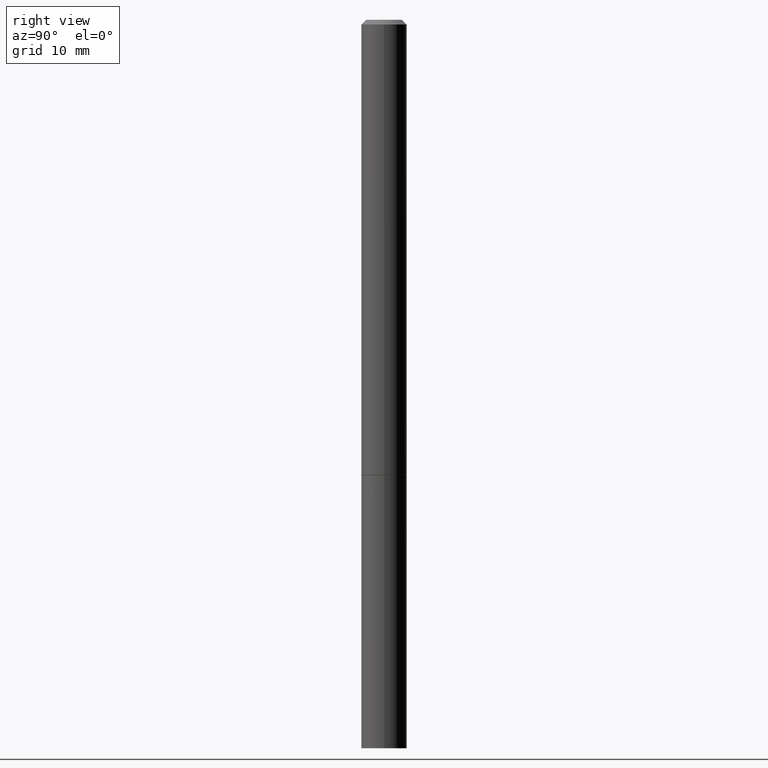
[diagram: clean part render]
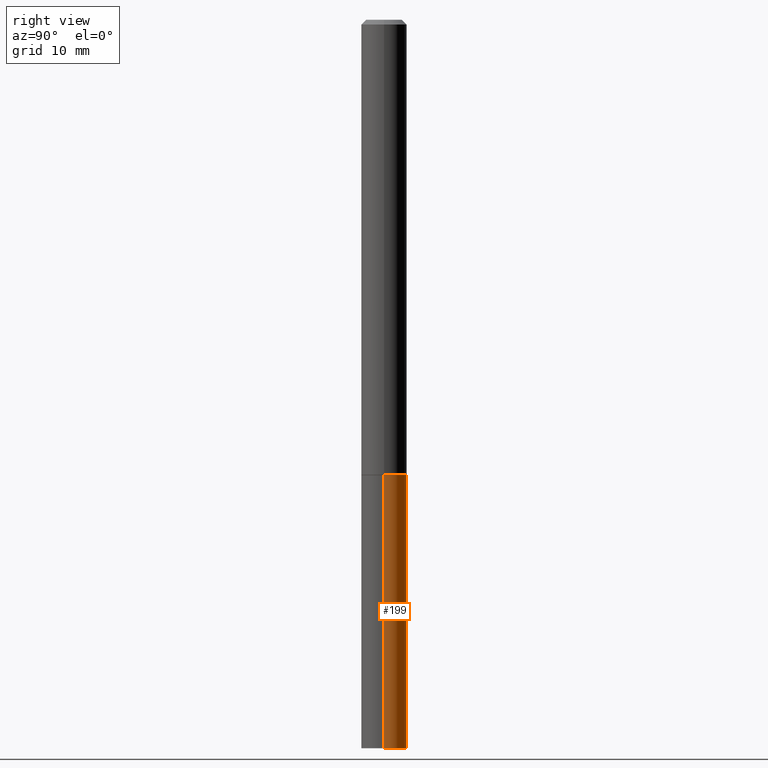
[diagram: same view with one face highlighted and labeled with its STEP entity id]
A machine part, right view. The second image highlights one B-rep face of the part: STEP entity #199.
In plain terms, the highlighted cylindrical surface (edge-blend (fillet) strip) has radius 2.3813 mm, axis along (-0, 0, 1).
Its self-contained STEP definition (entity closure, byte-faithful):
#14 = VECTOR ( 'NONE', #228, 39.37007874015748143 ) ;
#16 = CARTESIAN_POINT ( 'NONE',  ( 4.585254011597131119E-29, -6.546527510330898707E-15, -1.875000000000000000 ) ) ;
#17 = DIRECTION ( 'NONE',  ( 1.000000000000000000, -6.982962677686265922E-15, 4.876176775795935793E-29 ) ) ;
#19 = CIRCLE ( 'NONE', #196, 0.09375000000000001388 ) ;
#24 = CIRCLE ( 'NONE', #348, 0.09375000000000001388 ) ;
#32 = CARTESIAN_POINT ( 'NONE',  ( -0.09375000000000001388, -7.844351948655072817E-15, -3.000000000000000444 ) ) ;
#36 = ORIENTED_EDGE ( 'NONE', *, *, #118, .F. ) ;
#46 = CYLINDRICAL_SURFACE ( 'NONE', #265, 0.09375000000000001388 ) ;
#91 = LINE ( 'NONE', #103, #14 ) ;
#95 = EDGE_LOOP ( 'NONE', ( #177, #238, #36, #203 ) ) ;
#103 = CARTESIAN_POINT ( 'NONE',  ( 0.09375000000000001388, -6.546527510330875041E-16, 4.571415727308690506E-30 ) ) ;
#109 = DIRECTION ( 'NONE',  ( -2.445468806185136597E-29, 3.491481338843145583E-15, 1.000000000000000000 ) ) ;
#112 = DIRECTION ( 'NONE',  ( -2.445468806185136877E-29, 3.491481338843145188E-15, 1.000000000000000000 ) ) ;
#118 = EDGE_CURVE ( 'NONE', #362, #174, #24, .T. ) ;
#121 = DIRECTION ( 'NONE',  ( -2.445468806185136597E-29, 3.491481338843145583E-15, 1.000000000000000000 ) ) ;
#124 = CARTESIAN_POINT ( 'NONE',  ( -0.09375000000000001388, 6.661338147750940229E-16, -4.611501647113973995E-30 ) ) ;
#126 = EDGE_CURVE ( 'NONE', #319, #174, #253, .T. ) ;
#143 = CARTESIAN_POINT ( 'NONE',  ( 0.09375000000000001388, -7.201180261363985422E-15, -1.875000000000000000 ) ) ;
#151 = EDGE_CURVE ( 'NONE', #337, #362, #91, .T. ) ;
#160 = EDGE_CURVE ( 'NONE', #337, #319, #19, .T. ) ;
#174 = VERTEX_POINT ( 'NONE', #343 ) ;
#177 = ORIENTED_EDGE ( 'NONE', *, *, #160, .T. ) ;
#188 = FACE_OUTER_BOUND ( 'NONE', #95, .T. ) ;
#196 = AXIS2_PLACEMENT_3D ( 'NONE', #278, #121, #269 ) ;
#199 = ADVANCED_FACE ( 'NONE', ( #188 ), #46, .T. ) ;
#203 = ORIENTED_EDGE ( 'NONE', *, *, #151, .F. ) ;
#228 = DIRECTION ( 'NONE',  ( -2.445468806185136877E-29, 3.491481338843145188E-15, 1.000000000000000000 ) ) ;
#238 = ORIENTED_EDGE ( 'NONE', *, *, #126, .T. ) ;
#239 = DIRECTION ( 'NONE',  ( -2.445468806185136597E-29, 3.491481338843145583E-15, 1.000000000000000000 ) ) ;
#253 = LINE ( 'NONE', #124, #310 ) ;
#265 = AXIS2_PLACEMENT_3D ( 'NONE', #271, #109, #17 ) ;
#269 = DIRECTION ( 'NONE',  ( 1.000000000000000000, -6.982962677686261189E-15, 0.000000000000000000 ) ) ;
#271 = CARTESIAN_POINT ( 'NONE',  ( 0.000000000000000000, 0.000000000000000000, 0.000000000000000000 ) ) ;
#278 = CARTESIAN_POINT ( 'NONE',  ( 7.336406418555409790E-29, -1.047444401652943635E-14, -3.000000000000000444 ) ) ;
#287 = CARTESIAN_POINT ( 'NONE',  ( 0.09375000000000001388, -1.112909676756252465E-14, -3.000000000000000444 ) ) ;
#310 = VECTOR ( 'NONE', #112, 39.37007874015748143 ) ;
#319 = VERTEX_POINT ( 'NONE', #32 ) ;
#337 = VERTEX_POINT ( 'NONE', #287 ) ;
#343 = CARTESIAN_POINT ( 'NONE',  ( -0.09375000000000001388, -7.844351948655072817E-15, -1.875000000000000000 ) ) ;
#348 = AXIS2_PLACEMENT_3D ( 'NONE', #16, #239, #359 ) ;
#359 = DIRECTION ( 'NONE',  ( 1.000000000000000000, -6.982962677686261189E-15, 0.000000000000000000 ) ) ;
#362 = VERTEX_POINT ( 'NONE', #143 ) ;